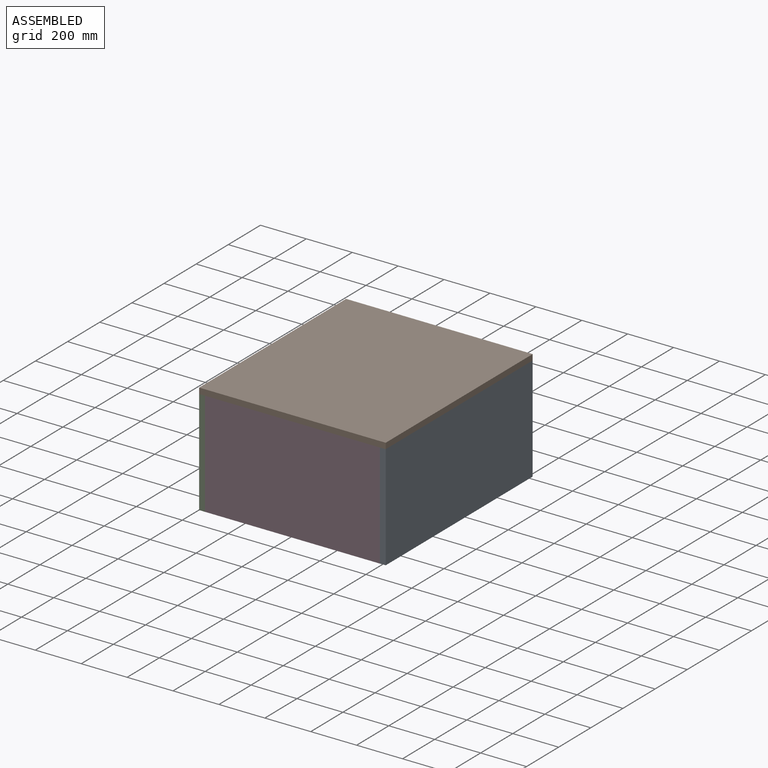
[diagram: assembled view]
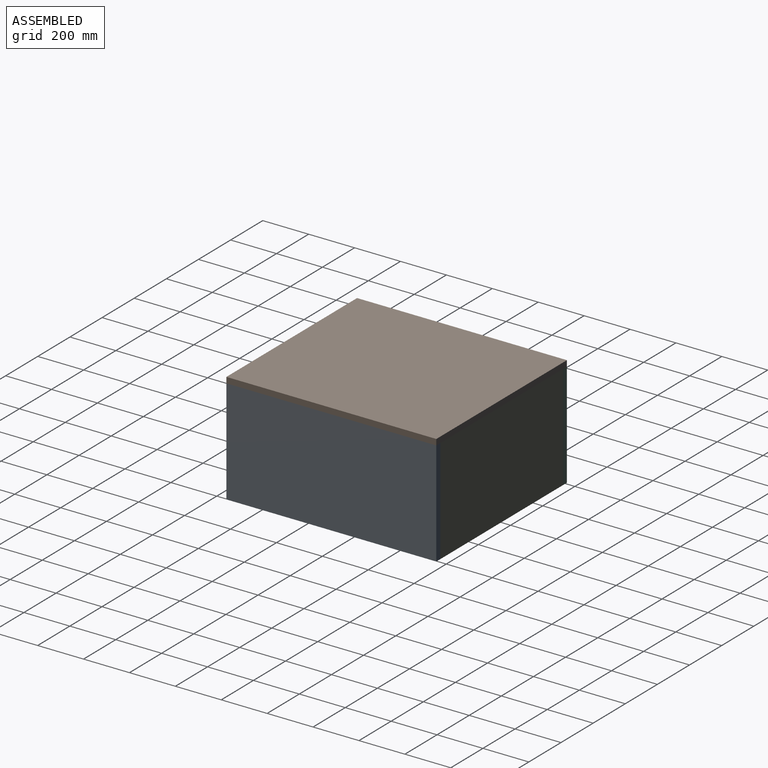
[diagram: assembled view, second angle]
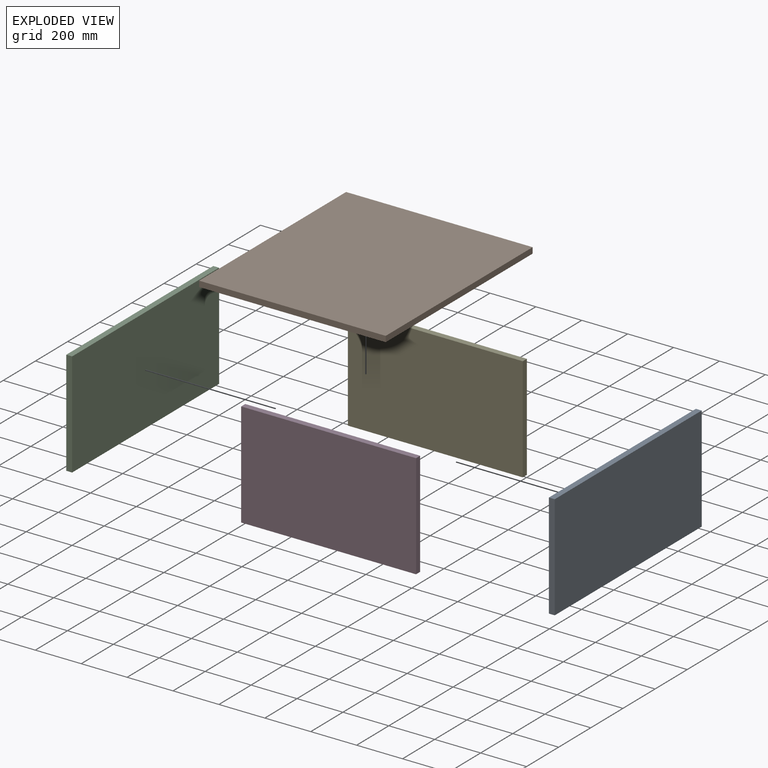
[diagram: exploded view]
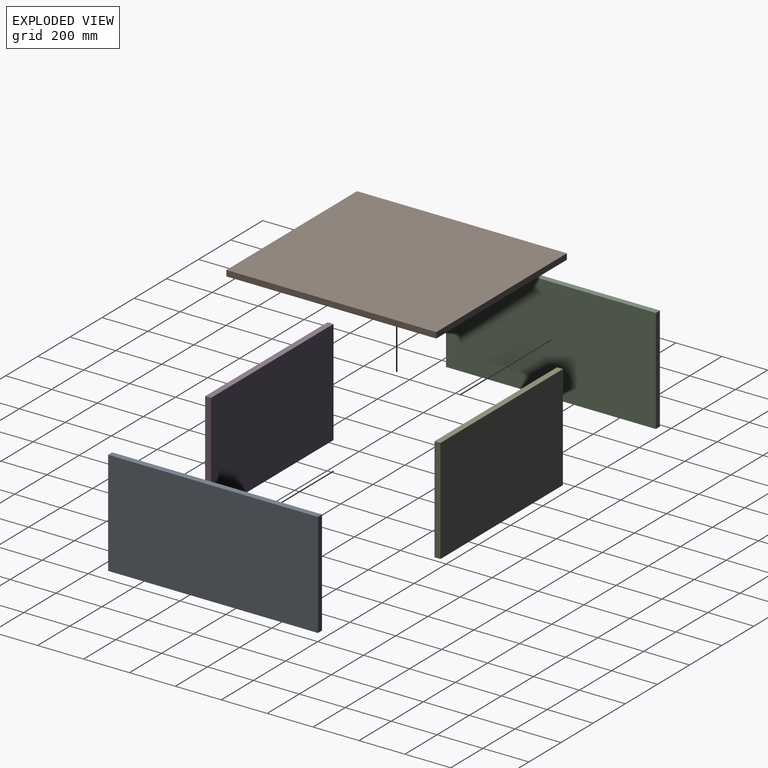
[diagram: exploded view, second angle]
ASSEMBLY  parts=5 mates=4
PART A: 6 faces, bbox 914.4x25.4x457.2 mm
  f0: plane 457.2x25.4mm, normal (-1,0,0), area 11612.9mm2, adj f1,f3,f4,f5
  f1: plane 914.4x25.4mm, normal (0,0,-1), area 23225.8mm2, adj f0,f2,f4,f5
  f2: plane 457.2x25.4mm, normal (1,0,0), area 11612.9mm2, adj f1,f3,f4,f5
  f3: plane 914.4x25.4mm, normal (0,0,1), area 23225.8mm2, adj f0,f2,f4,f5
  f4: plane 914.4x457.2mm, normal (0,-1,0), area 418063.7mm2, adj f0,f1,f2,f3
  f5: plane 914.4x457.2mm, normal (0,1,0), area 418063.7mm2, adj f0,f1,f2,f3
PART B: 6 faces, bbox 914.4x25.4x812.8 mm
  f0: plane 812.8x25.4mm, normal (-1,0,0), area 20645.1mm2, adj f1,f3,f4,f5
  f1: plane 914.4x25.4mm, normal (0,0,-1), area 23225.8mm2, adj f0,f2,f4,f5
  f2: plane 812.8x25.4mm, normal (1,0,0), area 20645.1mm2, adj f1,f3,f4,f5
  f3: plane 914.4x25.4mm, normal (0,0,1), area 23225.8mm2, adj f0,f2,f4,f5
  f4: plane 914.4x812.8mm, normal (0,-1,0), area 743224.3mm2, adj f0,f1,f2,f3
  f5: plane 914.4x812.8mm, normal (0,1,0), area 743224.3mm2, adj f0,f1,f2,f3
PART C: same geometry as A
PART D: 6 faces, bbox 762x25.4x457.2 mm
  f0: plane 457.2x25.4mm, normal (-1,0,0), area 11612.9mm2, adj f1,f3,f4,f5
  f1: plane 762x25.4mm, normal (0,0,-1), area 19354.8mm2, adj f0,f2,f4,f5
  f2: plane 457.2x25.4mm, normal (1,0,0), area 11612.9mm2, adj f1,f3,f4,f5
  f3: plane 762x25.4mm, normal (0,0,1), area 19354.8mm2, adj f0,f2,f4,f5
  f4: plane 762x457.2mm, normal (0,-1,0), area 348386.4mm2, adj f0,f1,f2,f3
  f5: plane 762x457.2mm, normal (0,1,0), area 348386.4mm2, adj f0,f1,f2,f3
PART E: same geometry as D
PLACE A rot(axis=(0,0,1),90deg) t=(1812.65,1498.12,54.97)mm
PLACE B rot(axis=(0.58,0.58,0.58),120deg) t=(1319.57,1537.83,299.53)mm
PLACE C rot(axis=(0,0,1),90deg) t=(1025.25,1498.12,54.97)mm
PLACE D t=(1403.38,1094.37,51.01)mm
PLACE E t=(1403.38,1983.37,51.01)mm
MATE fastened C.f4 <-> D.f0  axis (1,0,0) through (1050.65,1068.97,274.13)mm
MATE fastened B.f4 <-> C.f3  axis (0,0,-1) through (1025.25,1983.37,274.13)mm
MATE fastened C.f4 <-> E.f0  axis (1,0,0) through (1050.65,1983.37,274.13)mm
MATE fastened A.f5 <-> E.f2  axis (-1,0,0) through (1812.65,1983.37,274.13)mm
